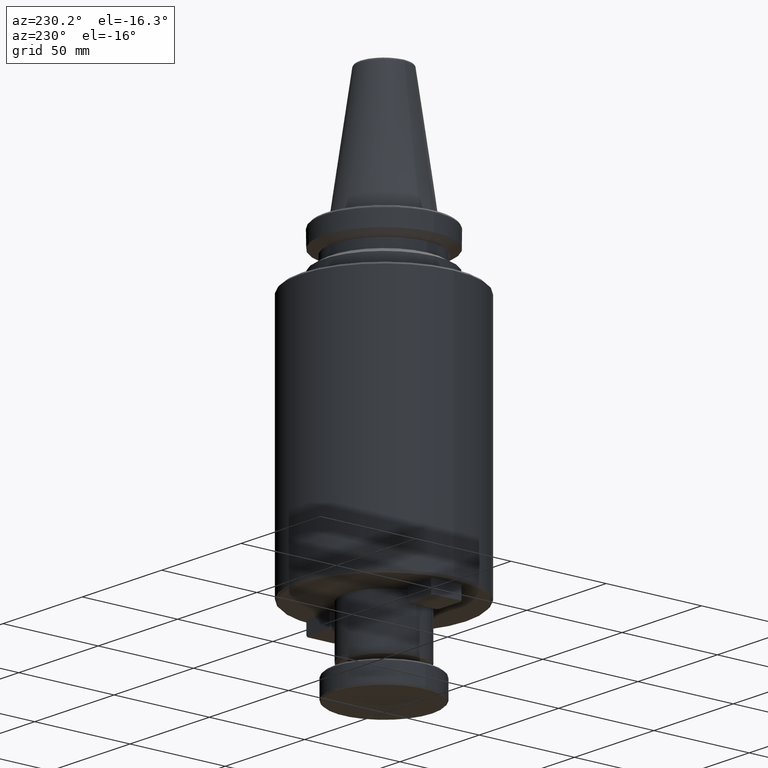
[diagram: clean part render]
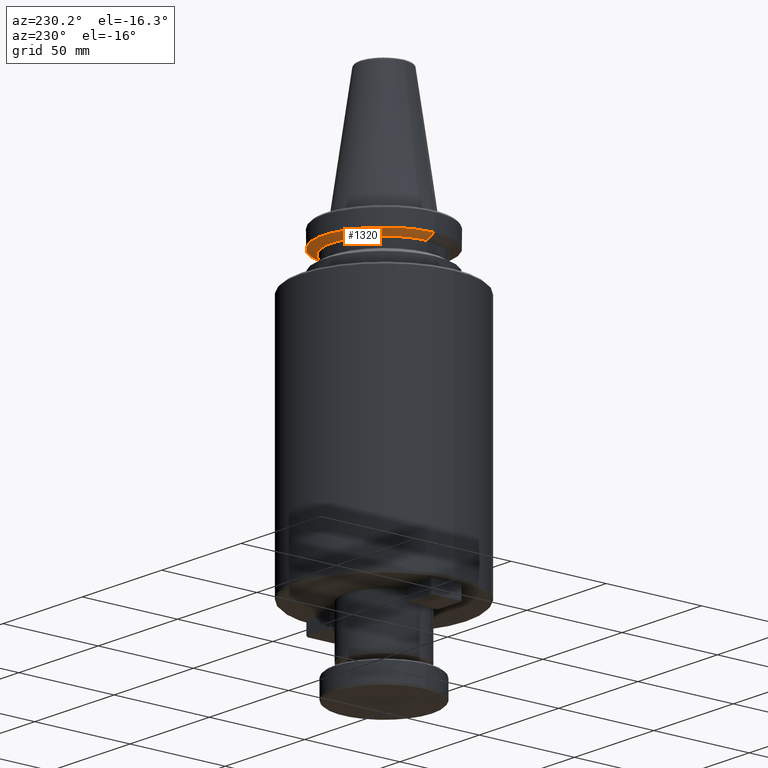
[diagram: same view with one face highlighted and labeled with its STEP entity id]
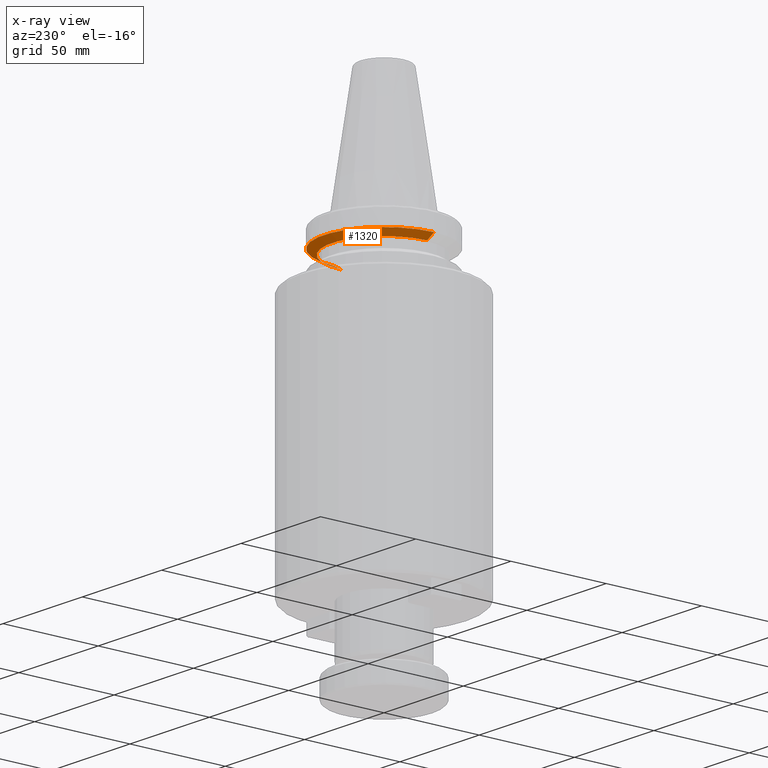
[diagram: x-ray of the same camera — body ghosted, the highlighted face saturated]
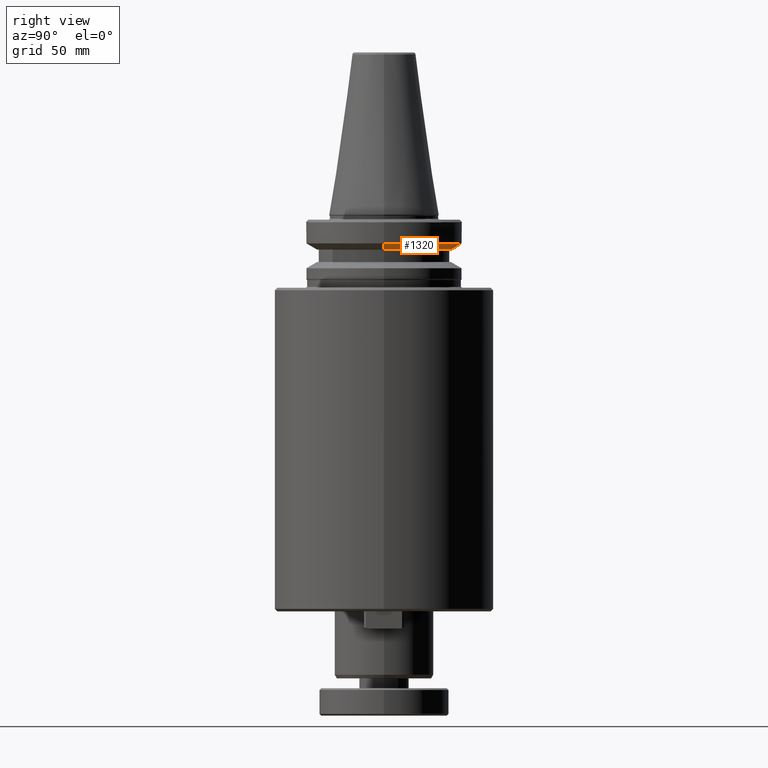
[diagram: same view with one face highlighted and labeled with its STEP entity id]
A machine part, auxiliary view. The second image highlights one B-rep face of the part: STEP entity #1320.
The next image is the same camera in x-ray: the body ghosted, the highlighted face saturated — about 2% of this face is hidden behind the body in this view.
A second angle (right view) of the same face is appended — the face is thin or edge-on in the first view.
In plain terms, the highlighted conical surface has half-angle 60 deg.
Its self-contained STEP definition (entity closure, byte-faithful):
#122 = ORIENTED_EDGE ( 'NONE', *, *, #3250, .T. ) ;
#148 = DIRECTION ( 'NONE',  ( 1.000000000000000000, 0.0000000000000000000, 0.0000000000000000000 ) ) ;
#151 = DIRECTION ( 'NONE',  ( 0.0000000000000000000, -0.0000000000000000000, 1.000000000000000000 ) ) ;
#153 = CARTESIAN_POINT ( 'NONE',  ( 0.0000000000000000000, 0.0000000000000000000, -14.10000000000000100 ) ) ;
#263 = CIRCLE ( 'NONE', #2001, 27.16962701892216000 ) ;
#339 = CARTESIAN_POINT ( 'NONE',  ( 31.50000000000000000, 0.0000000000000000000, -11.59985799368323700 ) ) ;
#390 = DIRECTION ( 'NONE',  ( 1.000000000000000000, 0.0000000000000000000, -5.507058653894625900E-017 ) ) ;
#614 = AXIS2_PLACEMENT_3D ( 'NONE', #650, #3083, #390 ) ;
#650 = CARTESIAN_POINT ( 'NONE',  ( 0.0000000000000000000, 0.0000000000000000000, -11.59985799368323700 ) ) ;
#736 = EDGE_CURVE ( 'NONE', #1420, #2055, #1810, .T. ) ;
#804 = ORIENTED_EDGE ( 'NONE', *, *, #1740, .F. ) ;
#992 = VECTOR ( 'NONE', #2840, 1000.000000000000000 ) ;
#1050 = CARTESIAN_POINT ( 'NONE',  ( 0.0000000000000000000, 0.0000000000000000000, -11.59985799368323700 ) ) ;
#1263 = CARTESIAN_POINT ( 'NONE',  ( -31.50000000000000000, 3.857637417314162700E-015, -11.59985799368323700 ) ) ;
#1320 = ADVANCED_FACE ( 'NONE', ( #1905 ), #2474, .T. ) ;
#1329 = DIRECTION ( 'NONE',  ( 1.000000000000000000, 0.0000000000000000000, 0.0000000000000000000 ) ) ;
#1344 = LINE ( 'NONE', #339, #992 ) ;
#1374 = VECTOR ( 'NONE', #2030, 1000.000000000000000 ) ;
#1420 = VERTEX_POINT ( 'NONE', #1263 ) ;
#1510 = DIRECTION ( 'NONE',  ( 0.0000000000000000000, -0.0000000000000000000, 1.000000000000000000 ) ) ;
#1694 = ORIENTED_EDGE ( 'NONE', *, *, #2316, .T. ) ;
#1735 = LINE ( 'NONE', #2031, #1374 ) ;
#1740 = EDGE_CURVE ( 'NONE', #1757, #2055, #1344, .T. ) ;
#1757 = VERTEX_POINT ( 'NONE', #2009 ) ;
#1810 = CIRCLE ( 'NONE', #614, 31.50000000000000000 ) ;
#1905 = FACE_OUTER_BOUND ( 'NONE', #3369, .T. ) ;
#1954 = AXIS2_PLACEMENT_3D ( 'NONE', #1050, #1510, #1329 ) ;
#1982 = VERTEX_POINT ( 'NONE', #2931 ) ;
#2001 = AXIS2_PLACEMENT_3D ( 'NONE', #153, #151, #148 ) ;
#2009 = CARTESIAN_POINT ( 'NONE',  ( 27.16962701892216000, 0.0000000000000000000, -14.10000000000000100 ) ) ;
#2030 = DIRECTION ( 'NONE',  ( -0.8660254037844393700, 1.060575238724907800E-016, 0.4999999999999987200 ) ) ;
#2031 = CARTESIAN_POINT ( 'NONE',  ( -31.50000000000000000, 3.857637417314162700E-015, -11.59985799368323700 ) ) ;
#2055 = VERTEX_POINT ( 'NONE', #2852 ) ;
#2316 = EDGE_CURVE ( 'NONE', #1982, #1420, #1735, .T. ) ;
#2465 = ORIENTED_EDGE ( 'NONE', *, *, #736, .T. ) ;
#2474 = CONICAL_SURFACE ( 'NONE', #1954, 31.50000000000000000, 1.047197551196599200 ) ;
#2840 = DIRECTION ( 'NONE',  ( 0.8660254037844393700, 0.0000000000000000000, 0.4999999999999987200 ) ) ;
#2852 = CARTESIAN_POINT ( 'NONE',  ( 31.50000000000000000, 0.0000000000000000000, -11.59985799368323700 ) ) ;
#2931 = CARTESIAN_POINT ( 'NONE',  ( -27.16962701892216000, 3.592478546794604700E-015, -14.10000000000000100 ) ) ;
#3083 = DIRECTION ( 'NONE',  ( -0.0000000000000000000, -0.0000000000000000000, -1.000000000000000000 ) ) ;
#3250 = EDGE_CURVE ( 'NONE', #1757, #1982, #263, .T. ) ;
#3369 = EDGE_LOOP ( 'NONE', ( #122, #1694, #2465, #804 ) ) ;